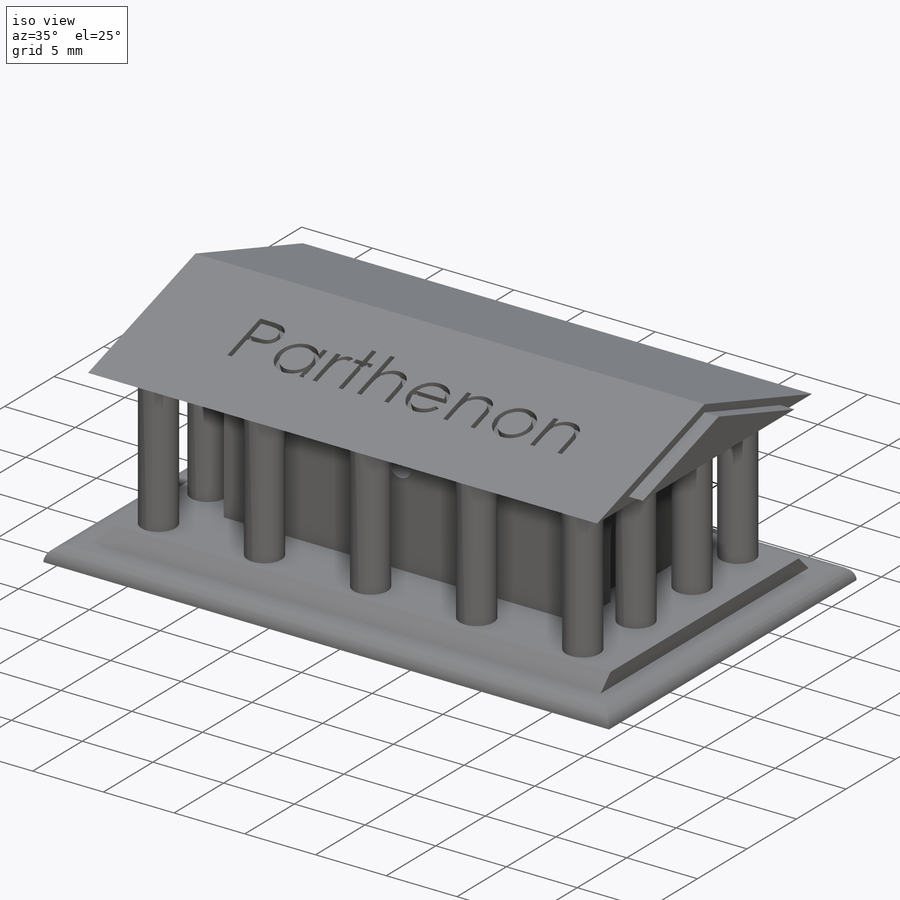
[diagram: iso view]
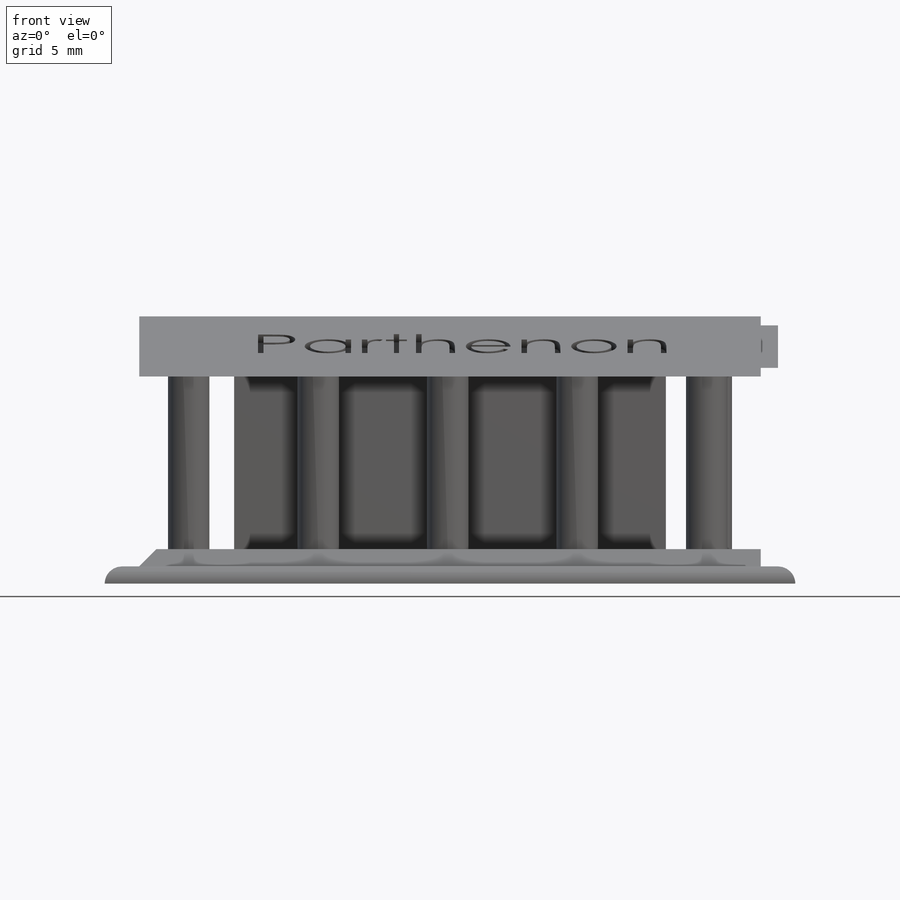
[diagram: front view]
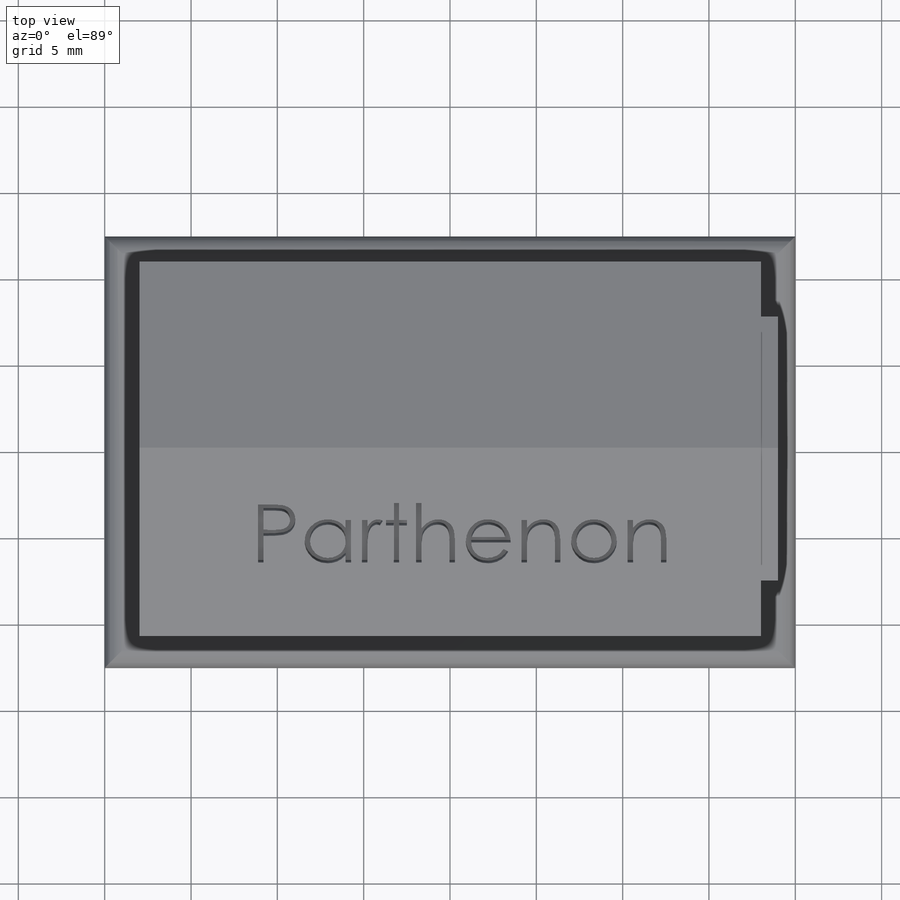
[diagram: top view]
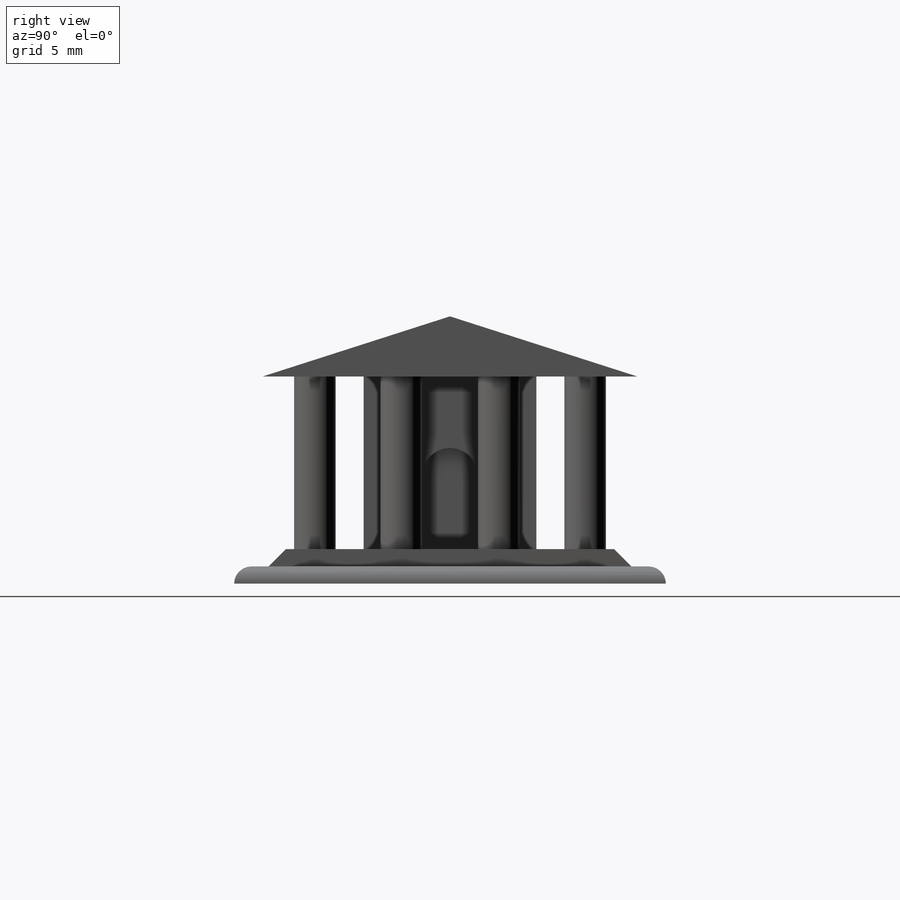
[diagram: right view]
SOLIDWORKS PART (.sldprt)
format: sldprt  version: not decoded by parser v0  size: 581,120 bytes
history: native  units: mm
features: sketch x11, extrude x6, cut_extrude x4, pattern_linear x2, mirror x2, chamfer x2, material x1, boolean_combine x1, fillet x1 (+13 scaffold rows collapsed)
feature tree (43):
  scaffold x13  (default folders/planes/origin — collapsed)
  material  "Material <not specified>"
  sketch  "Sketch1"  dims[D1=40.0mm D2=25.0mm D3=20.0mm D4=12.5mm]
  extrude  "Boss-Extrude1"  Depth=1mm
  sketch  "Sketch2"  dims[c1.D1=36.0mm c1.D2=30.0mm c2.D2=90.0deg c3.D2=21.0mm c3.D3=18.0mm c3.D4=10.5mm]
  extrude  "Boss-Extrude2"  Depth=1mm
  sketch  "Sketch3"
  sketch  "Sketch4"  dims[D1=25.0mm D2=12.5mm D3=10.0mm D4=5.0mm]
  extrude  "Boss-Extrude3"  Depth=10mm
  sketch  "Sketch5"  dims[D1=1.5mm]
  extrude  "Boss-Extrude4"  Depth=10mm
  pattern_linear  "LPattern1"  Count1=5 Count2=1 Spacing1=7.5mm Spacing2=50mm
  pattern_linear  "LPattern3"  Count1=2 Count2=1 Spacing1=5mm Spacing2=50mm
  mirror  "Mirror1"
  mirror  "Mirror2"
  boolean_combine  "Combine1"
  sketch  "Sketch8"  dims[D1=~1.824619mm D2=1.82mm]
  extrude  "Boss-Extrude5"  [1 undecoded]
  fillet  "Fillet1"  Radius=1mm
  sketch  "Sketch10"
  cut_extrude  "Cut-Extrude2"  Depth=0.5mm
  sketch  "Sketch12"
  cut_extrude  "Cut-Extrude3"  Depth=1mm
  sketch  "Sketch16"  dims[D1=0.5mm]
  cut_extrude  "Cut-Extrude5"  Depth=1mm
  sketch  "Sketch24"  dims[D1=0.5mm]
  extrude  "Boss-Extrude6"  Depth=1mm
  chamfer  "Chamfer1"  Distance=1mm Angle=45deg
  chamfer  "Chamfer2"  Distance=1mm Angle=45deg
  sketch  "Sketch26"
  cut_extrude  "Cut-Extrude6"  [1 undecoded]
decode coverage: 20 of 29 modeling features carry decoded parameters
note: ~ marks probable driven/reference dimensions
note: 2 parameter values undecoded
note: suppression state not decoded; provenance and decode notes live in map.json
